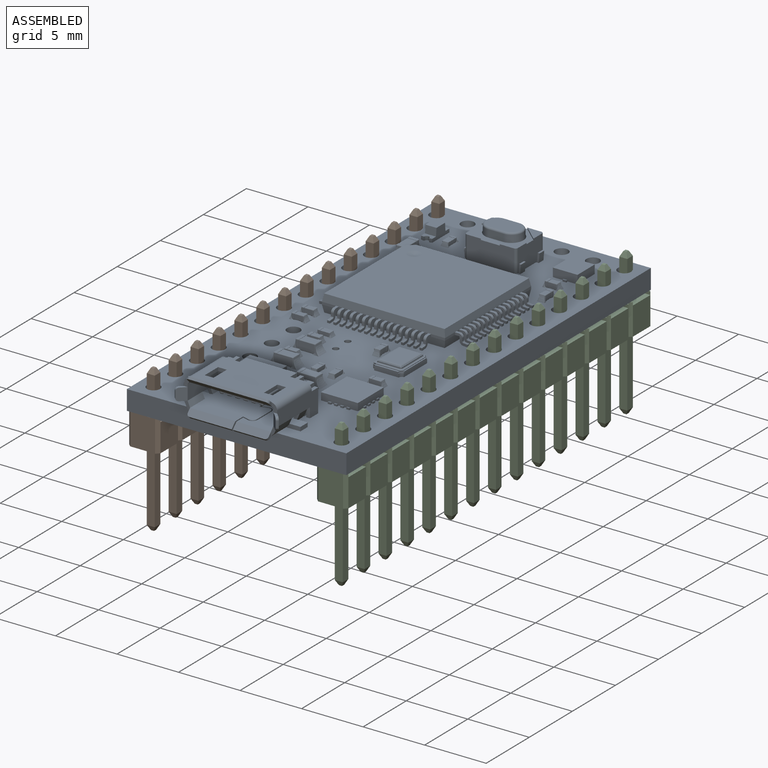
[diagram: assembled view]
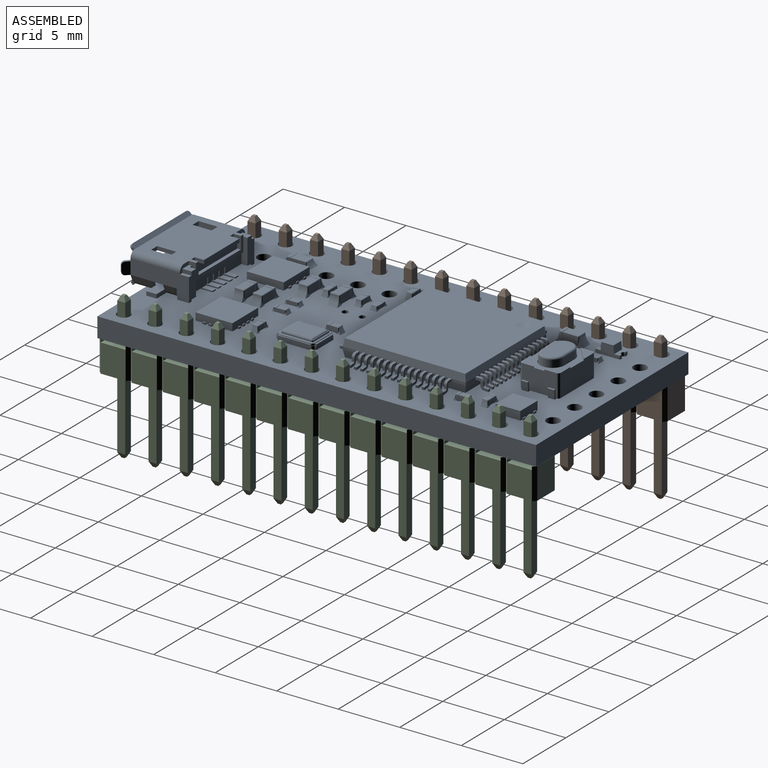
[diagram: assembled view, second angle]
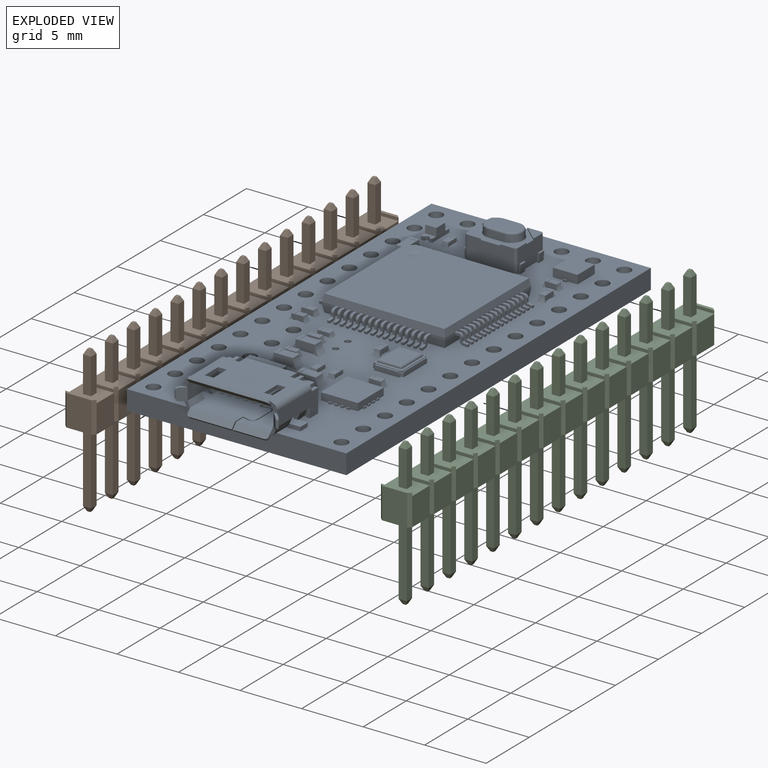
[diagram: exploded view]
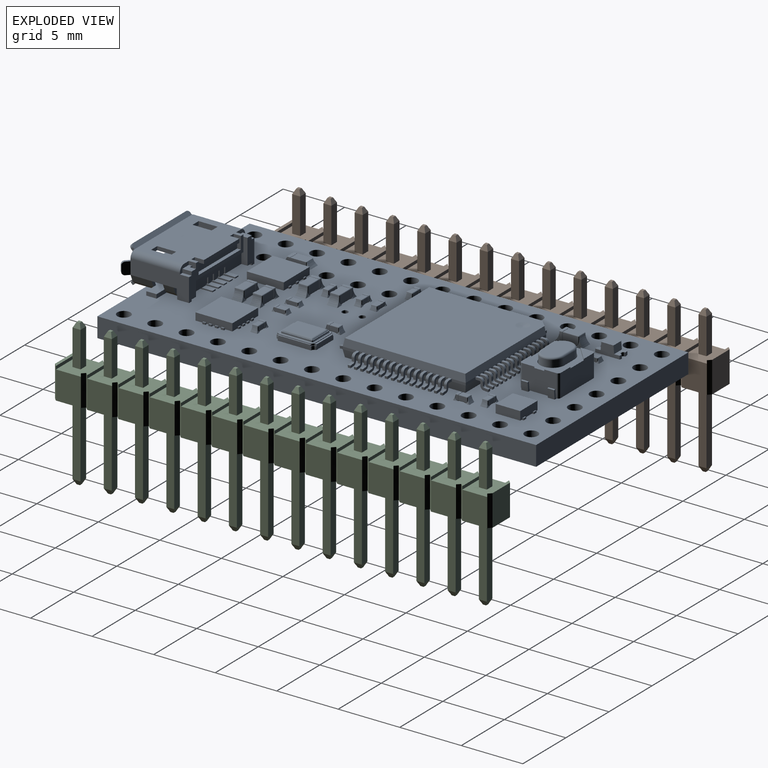
[diagram: exploded view, second angle]
FCSTD DOCUMENT  (FreeCAD 2022.709R26244 +5001 (Git))
Label: Teensy3.2
License: All rights reserved
LicenseURL: http://en.wikipedia.org/wiki/All_rights_reserved
objects: App::Link×80, Part::Feature×28, App::Part×10
note: 28 computed .brp shape members not serialized (recipe doc carries the construction recipe); baked Part::Feature solids carry a one-line shape summary decoded from their .brp

FEATURE [Part::Feature] Solid  label="board"
  Placement = pos=(0.3,3.24e-14,0.1) rot=(0,0,1;0.004152rad)
  TreeRank = 359
  shape: bbox 17.93 x 35.63 x 1.6 mm, 45 faces (baked)
FEATURE [Part::Feature] Solid001  label="Group#12 (1)"
  Placement = pos=(2.53798,1.65653,1.05395) rot=(0,0,1;0rad)
  TreeRank = 360
  shape: bbox 0.3749 x 1.54 x 3.85 mm, 10 faces (baked)
FEATURE [Part::Feature] Solid002  label="micro_usb_plastic (1)"
  Placement = pos=(0.552175,0.369805,0.30395) rot=(0,0,1;0rad)
  TreeRank = 361
  shape: bbox 6.981 x 2.052 x 3.546 mm, 68 faces (baked)
FEATURE [Part::Feature] Solid003  label="micro_usb_shell (1)"
  Placement = pos=(0.252175,0.21783,0.30395) rot=(0,0,1;0rad)
  TreeRank = 362
  shape: bbox 8.939 x 3.087 x 5.372 mm, 124 faces (baked)
FEATURE [App::Link] Link  label="Group#12 (1)001"
  AutoLinkLabel = true
  AutoPlacement = true
  LinkPlacement = pos=(3.19654,1.65653,1.05395) rot=(0,0,1;0rad)
  LinkedObject = -> Solid001
  Placement = pos=(3.19654,1.65653,1.05395) rot=(0,0,1;0rad)
  ShowElement = false
  SyncGroupVisibility = false
  TreeRank = 363
  _LinkVersion = 1
FEATURE [App::Link] Link001  label="Group#12 (1)002"
  AutoLinkLabel = true
  AutoPlacement = true
  LinkPlacement = pos=(3.8551,1.65653,1.05395) rot=(0,0,1;0rad)
  LinkedObject = -> Solid001
  Placement = pos=(3.8551,1.65653,1.05395) rot=(0,0,1;0rad)
  ShowElement = false
  SyncGroupVisibility = false
  TreeRank = 364
  _LinkVersion = 1
FEATURE [App::Link] Link002  label="Group#12 (1)003"
  AutoLinkLabel = true
  AutoPlacement = true
  LinkPlacement = pos=(4.51365,1.65653,1.05395) rot=(0,0,1;0rad)
  LinkedObject = -> Solid001
  Placement = pos=(4.51365,1.65653,1.05395) rot=(0,0,1;0rad)
  ShowElement = false
  SyncGroupVisibility = false
  TreeRank = 365
  _LinkVersion = 1
FEATURE [App::Link] Link003  label="Group#12 (1)004"
  AutoLinkLabel = true
  AutoPlacement = true
  LinkPlacement = pos=(5.17221,1.65653,1.05395) rot=(0,0,1;0rad)
  LinkedObject = -> Solid001
  Placement = pos=(5.17221,1.65653,1.05395) rot=(0,0,1;0rad)
  ShowElement = false
  SyncGroupVisibility = false
  TreeRank = 366
  _LinkVersion = 1
FEATURE [App::Part] Part  label="micro_usb (1)"
  ClaimAllChildren = false
  ExportMode = 1
  Group = -> [Solid001,Solid002,Solid003,Link,Link001,Link002,Link003]
  Origin = -> Origin
  Placement = pos=(5.20898,4.30597,1.48217) rot=(1,0,0;1.5708rad)
  TreeRank = 367
  _ExportChildren = -> [Solid001,Solid002,Solid003,Link,Link001,Link002,Link003]
  _GroupVersion = 1
FEATURE [Part::Feature] Solid004  label="Component21"
  TreeRank = 368
  shape: bbox 3 x 3 x 0.6 mm, 6 faces (baked)
FEATURE [Part::Feature] Compound  label="lead"
  TreeRank = 369
  shape: bbox 3.2 x 3.2 x 0.15 mm, 96 faces, 16 solids (baked)
FEATURE [App::Part] Part001  label="qfp16 v2"
  ClaimAllChildren = false
  ExportMode = 1
  Group = -> [Solid004,Compound]
  Origin = -> Origin001
  Placement = pos=(13.462,7.366,1.6) rot=(0,0,1;0rad)
  TreeRank = 370
  _ExportChildren = -> [Solid004,Compound]
  _GroupVersion = 1
FEATURE [Part::Feature] Solid005  label="package (1)"
  TreeRank = 371
  shape: bbox 10 x 10 x 1.4 mm, 19 faces (baked)
FEATURE [Part::Feature] Solid006  label="lead (3)"
  TreeRank = 372
  shape: bbox 1.19 x 0.22 x 0.85 mm, 14 faces (baked)
FEATURE [App::Link] Link004  label="lead (3)001"
  AutoLinkLabel = true
  AutoPlacement = true
  LinkPlacement = pos=(0,-3.5,0) rot=(0,0,1;0rad)
  LinkedObject = -> Solid006
  Placement = pos=(0,-3.5,0) rot=(0,0,1;0rad)
  ShowElement = false
  SyncGroupVisibility = false
  TreeRank = 373
  _LinkVersion = 1
FEATURE [App::Link] Link005  label="lead (3)002"
  AutoLinkLabel = true
  AutoPlacement = true
  LinkPlacement = pos=(0,-3,0) rot=(0,0,1;0rad)
  LinkedObject = -> Solid006
  Placement = pos=(0,-3,0) rot=(0,0,1;0rad)
  ShowElement = false
  SyncGroupVisibility = false
  TreeRank = 374
  _LinkVersion = 1
FEATURE [App::Link] Link006  label="lead (3)003"
  AutoLinkLabel = true
  AutoPlacement = true
  LinkPlacement = pos=(-1.1e-15,-2.5,0) rot=(0,0,1;0rad)
  LinkedObject = -> Solid006
  Placement = pos=(-1.1e-15,-2.5,0) rot=(0,0,1;0rad)
  ShowElement = false
  SyncGroupVisibility = false
  TreeRank = 375
  _LinkVersion = 1
FEATURE [App::Link] Link007  label="lead (3)004"
  AutoLinkLabel = true
  AutoPlacement = true
  LinkPlacement = pos=(-1.1e-15,-2,0) rot=(0,0,1;0rad)
  LinkedObject = -> Solid006
  Placement = pos=(-1.1e-15,-2,0) rot=(0,0,1;0rad)
  ShowElement = false
  SyncGroupVisibility = false
  TreeRank = 376
  _LinkVersion = 1
FEATURE [App::Link] Link008  label="lead (3)005"
  AutoLinkLabel = true
  AutoPlacement = true
  LinkPlacement = pos=(0,-1.5,0) rot=(0,0,1;0rad)
  LinkedObject = -> Solid006
  Placement = pos=(0,-1.5,0) rot=(0,0,1;0rad)
  ShowElement = false
  SyncGroupVisibility = false
  TreeRank = 377
  _LinkVersion = 1
FEATURE [App::Link] Link009  label="lead (3)006"
  AutoLinkLabel = true
  AutoPlacement = true
  LinkPlacement = pos=(0,-1,0) rot=(0,0,1;0rad)
  LinkedObject = -> Solid006
  Placement = pos=(0,-1,0) rot=(0,0,1;0rad)
  ShowElement = false
  SyncGroupVisibility = false
  TreeRank = 378
  _LinkVersion = 1
FEATURE [App::Link] Link010  label="lead (3)007"
  AutoLinkLabel = true
  AutoPlacement = true
  LinkPlacement = pos=(0,-0.5,0) rot=(0,0,1;0rad)
  LinkedObject = -> Solid006
  Placement = pos=(0,-0.5,0) rot=(0,0,1;0rad)
  ShowElement = false
  SyncGroupVisibility = false
  TreeRank = 379
  _LinkVersion = 1
FEATURE [App::Link] Link011  label="lead (3)008"
  AutoLinkLabel = true
  AutoPlacement = true
  LinkPlacement = pos=(0,0.5,0) rot=(0,0,1;0rad)
  LinkedObject = -> Solid006
  Placement = pos=(0,0.5,0) rot=(0,0,1;0rad)
  ShowElement = false
  SyncGroupVisibility = false
  TreeRank = 380
  _LinkVersion = 1
FEATURE [App::Link] Link012  label="lead (3)009"
  AutoLinkLabel = true
  AutoPlacement = true
  LinkPlacement = pos=(0,1,0) rot=(0,0,1;0rad)
  LinkedObject = -> Solid006
  Placement = pos=(0,1,0) rot=(0,0,1;0rad)
  ShowElement = false
  SyncGroupVisibility = false
  TreeRank = 381
  _LinkVersion = 1
FEATURE [App::Link] Link013  label="lead (3)010"
  AutoLinkLabel = true
  AutoPlacement = true
  LinkPlacement = pos=(-1.1e-15,1.5,0) rot=(0,0,1;0rad)
  LinkedObject = -> Solid006
  Placement = pos=(-1.1e-15,1.5,0) rot=(0,0,1;0rad)
  ShowElement = false
  SyncGroupVisibility = false
  TreeRank = 382
  _LinkVersion = 1
FEATURE [App::Link] Link014  label="lead (3)011"
  AutoLinkLabel = true
  AutoPlacement = true
  LinkPlacement = pos=(0,2,0) rot=(0,0,1;0rad)
  LinkedObject = -> Solid006
  Placement = pos=(0,2,0) rot=(0,0,1;0rad)
  ShowElement = false
  SyncGroupVisibility = false
  TreeRank = 383
  _LinkVersion = 1
FEATURE [App::Link] Link015  label="lead (3)012"
  AutoLinkLabel = true
  AutoPlacement = true
  LinkPlacement = pos=(0,2.5,0) rot=(0,0,1;0rad)
  LinkedObject = -> Solid006
  Placement = pos=(0,2.5,0) rot=(0,0,1;0rad)
  ShowElement = false
  SyncGroupVisibility = false
  TreeRank = 384
  _LinkVersion = 1
FEATURE [App::Link] Link016  label="lead (3)013"
  AutoLinkLabel = true
  AutoPlacement = true
  LinkPlacement = pos=(0,3,0) rot=(0,0,1;0rad)
  LinkedObject = -> Solid006
  Placement = pos=(0,3,0) rot=(0,0,1;0rad)
  ShowElement = false
  SyncGroupVisibility = false
  TreeRank = 385
  _LinkVersion = 1
FEATURE [App::Link] Link017  label="lead (3)014"
  AutoLinkLabel = true
  AutoPlacement = true
  LinkPlacement = pos=(0,3.5,0) rot=(0,0,1;0rad)
  LinkedObject = -> Solid006
  Placement = pos=(0,3.5,0) rot=(0,0,1;0rad)
  ShowElement = false
  SyncGroupVisibility = false
  TreeRank = 386
  _LinkVersion = 1
FEATURE [App::Link] Link018  label="lead (3)015"
  AutoLinkLabel = true
  AutoPlacement = true
  LinkPlacement = pos=(0,4,0) rot=(0,0,1;0rad)
  LinkedObject = -> Solid006
  Placement = pos=(0,4,0) rot=(0,0,1;0rad)
  ShowElement = false
  SyncGroupVisibility = false
  TreeRank = 387
  _LinkVersion = 1
FEATURE [App::Link] Link019  label="lead (3)016"
  AutoLinkLabel = true
  AutoPlacement = true
  LinkPlacement = pos=(0,0,0) rot=(0,0,1;1.5708rad)
  LinkedObject = -> Solid006
  Placement = pos=(0,0,0) rot=(0,0,1;1.5708rad)
  ShowElement = false
  SyncGroupVisibility = false
  TreeRank = 388
  _LinkVersion = 1
FEATURE [App::Link] Link020  label="lead (3)017"
  AutoLinkLabel = true
  AutoPlacement = true
  LinkPlacement = pos=(0.5,0,0) rot=(0,0,1;1.5708rad)
  LinkedObject = -> Solid006
  Placement = pos=(0.5,0,0) rot=(0,0,1;1.5708rad)
  ShowElement = false
  SyncGroupVisibility = false
  TreeRank = 389
  _LinkVersion = 1
FEATURE [App::Link] Link021  label="lead (3)018"
  AutoLinkLabel = true
  AutoPlacement = true
  LinkPlacement = pos=(-0.5,0,0) rot=(0,0,1;1.5708rad)
  LinkedObject = -> Solid006
  Placement = pos=(-0.5,0,0) rot=(0,0,1;1.5708rad)
  ShowElement = false
  SyncGroupVisibility = false
  TreeRank = 390
  _LinkVersion = 1
FEATURE [App::Link] Link022  label="lead (3)019"
  AutoLinkLabel = true
  AutoPlacement = true
  LinkPlacement = pos=(-1,0,0) rot=(0,0,1;1.5708rad)
  LinkedObject = -> Solid006
  Placement = pos=(-1,0,0) rot=(0,0,1;1.5708rad)
  ShowElement = false
  SyncGroupVisibility = false
  TreeRank = 391
  _LinkVersion = 1
FEATURE [App::Link] Link023  label="lead (3)020"
  AutoLinkLabel = true
  AutoPlacement = true
  LinkPlacement = pos=(3.5,4.4e-15,0) rot=(0,0,1;1.5708rad)
  LinkedObject = -> Solid006
  Placement = pos=(3.5,4.4e-15,0) rot=(0,0,1;1.5708rad)
  ShowElement = false
  SyncGroupVisibility = false
  TreeRank = 392
  _LinkVersion = 1
FEATURE [App::Link] Link024  label="lead (3)021"
  AutoLinkLabel = true
  AutoPlacement = true
  LinkPlacement = pos=(3,4.4e-15,0) rot=(0,0,1;1.5708rad)
  LinkedObject = -> Solid006
  Placement = pos=(3,4.4e-15,0) rot=(0,0,1;1.5708rad)
  ShowElement = false
  SyncGroupVisibility = false
  TreeRank = 393
  _LinkVersion = 1
FEATURE [App::Link] Link025  label="lead (3)022"
  AutoLinkLabel = true
  AutoPlacement = true
  LinkPlacement = pos=(2.5,4.4e-15,0) rot=(0,0,1;1.5708rad)
  LinkedObject = -> Solid006
  Placement = pos=(2.5,4.4e-15,0) rot=(0,0,1;1.5708rad)
  ShowElement = false
  SyncGroupVisibility = false
  TreeRank = 394
  _LinkVersion = 1
FEATURE [App::Link] Link026  label="lead (3)023"
  AutoLinkLabel = true
  AutoPlacement = true
  LinkPlacement = pos=(2,4.4e-15,0) rot=(0,0,1;1.5708rad)
  LinkedObject = -> Solid006
  Placement = pos=(2,4.4e-15,0) rot=(0,0,1;1.5708rad)
  ShowElement = false
  SyncGroupVisibility = false
  TreeRank = 395
  _LinkVersion = 1
FEATURE [App::Link] Link027  label="lead (3)024"
  AutoLinkLabel = true
  AutoPlacement = true
  LinkPlacement = pos=(1.5,4.4e-15,0) rot=(0,0,1;1.5708rad)
  LinkedObject = -> Solid006
  Placement = pos=(1.5,4.4e-15,0) rot=(0,0,1;1.5708rad)
  ShowElement = false
  SyncGroupVisibility = false
  TreeRank = 396
  _LinkVersion = 1
FEATURE [App::Link] Link028  label="lead (3)025"
  AutoLinkLabel = true
  AutoPlacement = true
  LinkPlacement = pos=(1,0,0) rot=(0,0,1;1.5708rad)
  LinkedObject = -> Solid006
  Placement = pos=(1,0,0) rot=(0,0,1;1.5708rad)
  ShowElement = false
  SyncGroupVisibility = false
  TreeRank = 397
  _LinkVersion = 1
FEATURE [App::Link] Link029  label="lead (3)026"
  AutoLinkLabel = true
  AutoPlacement = true
  LinkPlacement = pos=(-1.5,0,0) rot=(0,0,1;1.5708rad)
  LinkedObject = -> Solid006
  Placement = pos=(-1.5,0,0) rot=(0,0,1;1.5708rad)
  ShowElement = false
  SyncGroupVisibility = false
  TreeRank = 398
  _LinkVersion = 1
FEATURE [App::Link] Link030  label="lead (3)027"
  AutoLinkLabel = true
  AutoPlacement = true
  LinkPlacement = pos=(-2,0,0) rot=(0,0,1;1.5708rad)
  LinkedObject = -> Solid006
  Placement = pos=(-2,0,0) rot=(0,0,1;1.5708rad)
  ShowElement = false
  SyncGroupVisibility = false
  TreeRank = 399
  _LinkVersion = 1
FEATURE [App::Link] Link031  label="lead (3)028"
  AutoLinkLabel = true
  AutoPlacement = true
  LinkPlacement = pos=(-2.5,0,0) rot=(0,0,1;1.5708rad)
  LinkedObject = -> Solid006
  Placement = pos=(-2.5,0,0) rot=(0,0,1;1.5708rad)
  ShowElement = false
  SyncGroupVisibility = false
  TreeRank = 400
  _LinkVersion = 1
FEATURE [App::Link] Link032  label="lead (3)029"
  AutoLinkLabel = true
  AutoPlacement = true
  LinkPlacement = pos=(-3,0,0) rot=(0,0,1;1.5708rad)
  LinkedObject = -> Solid006
  Placement = pos=(-3,0,0) rot=(0,0,1;1.5708rad)
  ShowElement = false
  SyncGroupVisibility = false
  TreeRank = 401
  _LinkVersion = 1
FEATURE [App::Link] Link033  label="lead (3)030"
  AutoLinkLabel = true
  AutoPlacement = true
  LinkPlacement = pos=(-3.5,0,0) rot=(0,0,1;1.5708rad)
  LinkedObject = -> Solid006
  Placement = pos=(-3.5,0,0) rot=(0,0,1;1.5708rad)
  ShowElement = false
  SyncGroupVisibility = false
  TreeRank = 402
  _LinkVersion = 1
FEATURE [App::Link] Link034  label="lead (3)031"
  AutoLinkLabel = true
  AutoPlacement = true
  LinkPlacement = pos=(-4,0,0) rot=(0,0,1;1.5708rad)
  LinkedObject = -> Solid006
  Placement = pos=(-4,0,0) rot=(0,0,1;1.5708rad)
  ShowElement = false
  SyncGroupVisibility = false
  TreeRank = 403
  _LinkVersion = 1
FEATURE [App::Link] Link035  label="lead (3)032"
  AutoLinkLabel = true
  AutoPlacement = true
  LinkPlacement = pos=(0,0,0) rot=(0,0,1;3.14159rad)
  LinkedObject = -> Solid006
  Placement = pos=(0,0,0) rot=(0,0,1;3.14159rad)
  ShowElement = false
  SyncGroupVisibility = false
  TreeRank = 404
  _LinkVersion = 1
FEATURE [App::Link] Link036  label="lead (3)033"
  AutoLinkLabel = true
  AutoPlacement = true
  LinkPlacement = pos=(0,0.5,0) rot=(0,0,1;3.14159rad)
  LinkedObject = -> Solid006
  Placement = pos=(0,0.5,0) rot=(0,0,1;3.14159rad)
  ShowElement = false
  SyncGroupVisibility = false
  TreeRank = 405
  _LinkVersion = 1
FEATURE [App::Link] Link037  label="lead (3)034"
  AutoLinkLabel = true
  AutoPlacement = true
  LinkPlacement = pos=(0,-0.5,0) rot=(0,0,1;3.14159rad)
  LinkedObject = -> Solid006
  Placement = pos=(0,-0.5,0) rot=(0,0,1;3.14159rad)
  ShowElement = false
  SyncGroupVisibility = false
  TreeRank = 406
  _LinkVersion = 1
FEATURE [App::Link] Link038  label="lead (3)035"
  AutoLinkLabel = true
  AutoPlacement = true
  LinkPlacement = pos=(0,-1,0) rot=(0,0,1;3.14159rad)
  LinkedObject = -> Solid006
  Placement = pos=(0,-1,0) rot=(0,0,1;3.14159rad)
  ShowElement = false
  SyncGroupVisibility = false
  TreeRank = 407
  _LinkVersion = 1
FEATURE [App::Link] Link039  label="lead (3)036"
  AutoLinkLabel = true
  AutoPlacement = true
  LinkPlacement = pos=(0,3.5,0) rot=(0,0,1;3.14159rad)
  LinkedObject = -> Solid006
  Placement = pos=(0,3.5,0) rot=(0,0,1;3.14159rad)
  ShowElement = false
  SyncGroupVisibility = false
  TreeRank = 408
  _LinkVersion = 1
FEATURE [App::Link] Link040  label="lead (3)037"
  AutoLinkLabel = true
  AutoPlacement = true
  LinkPlacement = pos=(0,3,0) rot=(0,0,1;3.14159rad)
  LinkedObject = -> Solid006
  Placement = pos=(0,3,0) rot=(0,0,1;3.14159rad)
  ShowElement = false
  SyncGroupVisibility = false
  TreeRank = 409
  _LinkVersion = 1
FEATURE [App::Link] Link041  label="lead (3)038"
  AutoLinkLabel = true
  AutoPlacement = true
  LinkPlacement = pos=(0,2.5,0) rot=(0,0,1;3.14159rad)
  LinkedObject = -> Solid006
  Placement = pos=(0,2.5,0) rot=(0,0,1;3.14159rad)
  ShowElement = false
  SyncGroupVisibility = false
  TreeRank = 410
  _LinkVersion = 1
FEATURE [App::Link] Link042  label="lead (3)039"
  AutoLinkLabel = true
  AutoPlacement = true
  LinkPlacement = pos=(0,2,0) rot=(0,0,1;3.14159rad)
  LinkedObject = -> Solid006
  Placement = pos=(0,2,0) rot=(0,0,1;3.14159rad)
  ShowElement = false
  SyncGroupVisibility = false
  TreeRank = 411
  _LinkVersion = 1
FEATURE [App::Link] Link043  label="lead (3)040"
  AutoLinkLabel = true
  AutoPlacement = true
  LinkPlacement = pos=(0,1.5,0) rot=(0,0,1;3.14159rad)
  LinkedObject = -> Solid006
  Placement = pos=(0,1.5,0) rot=(0,0,1;3.14159rad)
  ShowElement = false
  SyncGroupVisibility = false
  TreeRank = 412
  _LinkVersion = 1
FEATURE [App::Link] Link044  label="lead (3)041"
  AutoLinkLabel = true
  AutoPlacement = true
  LinkPlacement = pos=(0,1,0) rot=(0,0,1;3.14159rad)
  LinkedObject = -> Solid006
  Placement = pos=(0,1,0) rot=(0,0,1;3.14159rad)
  ShowElement = false
  SyncGroupVisibility = false
  TreeRank = 413
  _LinkVersion = 1
FEATURE [App::Link] Link045  label="lead (3)042"
  AutoLinkLabel = true
  AutoPlacement = true
  LinkPlacement = pos=(-1.1e-15,-1.5,0) rot=(0,0,1;3.14159rad)
  LinkedObject = -> Solid006
  Placement = pos=(-1.1e-15,-1.5,0) rot=(0,0,1;3.14159rad)
  ShowElement = false
  SyncGroupVisibility = false
  TreeRank = 414
  _LinkVersion = 1
FEATURE [App::Link] Link046  label="lead (3)043"
  AutoLinkLabel = true
  AutoPlacement = true
  LinkPlacement = pos=(-1.1e-15,-2,0) rot=(0,0,1;3.14159rad)
  LinkedObject = -> Solid006
  Placement = pos=(-1.1e-15,-2,0) rot=(0,0,1;3.14159rad)
  ShowElement = false
  SyncGroupVisibility = false
  TreeRank = 415
  _LinkVersion = 1
FEATURE [App::Link] Link047  label="lead (3)044"
  AutoLinkLabel = true
  AutoPlacement = true
  LinkPlacement = pos=(-1.1e-15,-2.5,0) rot=(0,0,1;3.14159rad)
  LinkedObject = -> Solid006
  Placement = pos=(-1.1e-15,-2.5,0) rot=(0,0,1;3.14159rad)
  ShowElement = false
  SyncGroupVisibility = false
  TreeRank = 416
  _LinkVersion = 1
FEATURE [App::Link] Link048  label="lead (3)045"
  AutoLinkLabel = true
  AutoPlacement = true
  LinkPlacement = pos=(0,-3,0) rot=(0,0,1;3.14159rad)
  LinkedObject = -> Solid006
  Placement = pos=(0,-3,0) rot=(0,0,1;3.14159rad)
  ShowElement = false
  SyncGroupVisibility = false
  TreeRank = 417
  _LinkVersion = 1
FEATURE [App::Link] Link049  label="lead (3)046"
  AutoLinkLabel = true
  AutoPlacement = true
  LinkPlacement = pos=(0,-3.5,0) rot=(0,0,1;3.14159rad)
  LinkedObject = -> Solid006
  Placement = pos=(0,-3.5,0) rot=(0,0,1;3.14159rad)
  ShowElement = false
  SyncGroupVisibility = false
  TreeRank = 418
  _LinkVersion = 1
FEATURE [App::Link] Link050  label="lead (3)047"
  AutoLinkLabel = true
  AutoPlacement = true
  LinkPlacement = pos=(0,-4,0) rot=(0,0,1;3.14159rad)
  LinkedObject = -> Solid006
  Placement = pos=(0,-4,0) rot=(0,0,1;3.14159rad)
  ShowElement = false
  SyncGroupVisibility = false
  TreeRank = 419
  _LinkVersion = 1
FEATURE [App::Link] Link051  label="lead (3)048"
  AutoLinkLabel = true
  AutoPlacement = true
  LinkPlacement = pos=(0,0,0) rot=(0,0,-1;1.5708rad)
  LinkedObject = -> Solid006
  Placement = pos=(0,0,0) rot=(0,0,-1;1.5708rad)
  ShowElement = false
  SyncGroupVisibility = false
  TreeRank = 420
  _LinkVersion = 1
FEATURE [App::Link] Link052  label="lead (3)049"
  AutoLinkLabel = true
  AutoPlacement = true
  LinkPlacement = pos=(-0.5,0,0) rot=(0,0,-1;1.5708rad)
  LinkedObject = -> Solid006
  Placement = pos=(-0.5,0,0) rot=(0,0,-1;1.5708rad)
  ShowElement = false
  SyncGroupVisibility = false
  TreeRank = 421
  _LinkVersion = 1
FEATURE [App::Link] Link053  label="lead (3)050"
  AutoLinkLabel = true
  AutoPlacement = true
  LinkPlacement = pos=(0.5,0,0) rot=(0,0,-1;1.5708rad)
  LinkedObject = -> Solid006
  Placement = pos=(0.5,0,0) rot=(0,0,-1;1.5708rad)
  ShowElement = false
  SyncGroupVisibility = false
  TreeRank = 422
  _LinkVersion = 1
FEATURE [App::Link] Link054  label="lead (3)051"
  AutoLinkLabel = true
  AutoPlacement = true
  LinkPlacement = pos=(1,0,0) rot=(0,0,-1;1.5708rad)
  LinkedObject = -> Solid006
  Placement = pos=(1,0,0) rot=(0,0,-1;1.5708rad)
  ShowElement = false
  SyncGroupVisibility = false
  TreeRank = 423
  _LinkVersion = 1
FEATURE [App::Link] Link055  label="lead (3)052"
  AutoLinkLabel = true
  AutoPlacement = true
  LinkPlacement = pos=(-3.5,0,0) rot=(0,0,-1;1.5708rad)
  LinkedObject = -> Solid006
  Placement = pos=(-3.5,0,0) rot=(0,0,-1;1.5708rad)
  ShowElement = false
  SyncGroupVisibility = false
  TreeRank = 424
  _LinkVersion = 1
FEATURE [App::Link] Link056  label="lead (3)053"
  AutoLinkLabel = true
  AutoPlacement = true
  LinkPlacement = pos=(-3,0,0) rot=(0,0,-1;1.5708rad)
  LinkedObject = -> Solid006
  Placement = pos=(-3,0,0) rot=(0,0,-1;1.5708rad)
  ShowElement = false
  SyncGroupVisibility = false
  TreeRank = 425
  _LinkVersion = 1
FEATURE [App::Link] Link057  label="lead (3)054"
  AutoLinkLabel = true
  AutoPlacement = true
  LinkPlacement = pos=(-2.5,0,0) rot=(0,0,-1;1.5708rad)
  LinkedObject = -> Solid006
  Placement = pos=(-2.5,0,0) rot=(0,0,-1;1.5708rad)
  ShowElement = false
  SyncGroupVisibility = false
  TreeRank = 426
  _LinkVersion = 1
FEATURE [App::Link] Link058  label="lead (3)055"
  AutoLinkLabel = true
  AutoPlacement = true
  LinkPlacement = pos=(-2,0,0) rot=(0,0,-1;1.5708rad)
  LinkedObject = -> Solid006
  Placement = pos=(-2,0,0) rot=(0,0,-1;1.5708rad)
  ShowElement = false
  SyncGroupVisibility = false
  TreeRank = 427
  _LinkVersion = 1
FEATURE [App::Link] Link059  label="lead (3)056"
  AutoLinkLabel = true
  AutoPlacement = true
  LinkPlacement = pos=(-1.5,0,0) rot=(0,0,-1;1.5708rad)
  LinkedObject = -> Solid006
  Placement = pos=(-1.5,0,0) rot=(0,0,-1;1.5708rad)
  ShowElement = false
  SyncGroupVisibility = false
  TreeRank = 428
  _LinkVersion = 1
FEATURE [App::Link] Link060  label="lead (3)057"
  AutoLinkLabel = true
  AutoPlacement = true
  LinkPlacement = pos=(-1,0,0) rot=(0,0,-1;1.5708rad)
  LinkedObject = -> Solid006
  Placement = pos=(-1,0,0) rot=(0,0,-1;1.5708rad)
  ShowElement = false
  SyncGroupVisibility = false
  TreeRank = 429
  _LinkVersion = 1
FEATURE [App::Link] Link061  label="lead (3)058"
  AutoLinkLabel = true
  AutoPlacement = true
  LinkPlacement = pos=(1.5,4.4e-15,0) rot=(0,0,-1;1.5708rad)
  LinkedObject = -> Solid006
  Placement = pos=(1.5,4.4e-15,0) rot=(0,0,-1;1.5708rad)
  ShowElement = false
  SyncGroupVisibility = false
  TreeRank = 430
  _LinkVersion = 1
FEATURE [App::Link] Link062  label="lead (3)059"
  AutoLinkLabel = true
  AutoPlacement = true
  LinkPlacement = pos=(2,4.4e-15,0) rot=(0,0,-1;1.5708rad)
  LinkedObject = -> Solid006
  Placement = pos=(2,4.4e-15,0) rot=(0,0,-1;1.5708rad)
  ShowElement = false
  SyncGroupVisibility = false
  TreeRank = 431
  _LinkVersion = 1
FEATURE [App::Link] Link063  label="lead (3)060"
  AutoLinkLabel = true
  AutoPlacement = true
  LinkPlacement = pos=(2.5,4.4e-15,0) rot=(0,0,-1;1.5708rad)
  LinkedObject = -> Solid006
  Placement = pos=(2.5,4.4e-15,0) rot=(0,0,-1;1.5708rad)
  ShowElement = false
  SyncGroupVisibility = false
  TreeRank = 432
  _LinkVersion = 1
FEATURE [App::Link] Link064  label="lead (3)061"
  AutoLinkLabel = true
  AutoPlacement = true
  LinkPlacement = pos=(3,4.4e-15,0) rot=(0,0,-1;1.5708rad)
  LinkedObject = -> Solid006
  Placement = pos=(3,4.4e-15,0) rot=(0,0,-1;1.5708rad)
  ShowElement = false
  SyncGroupVisibility = false
  TreeRank = 433
  _LinkVersion = 1
FEATURE [App::Link] Link065  label="lead (3)062"
  AutoLinkLabel = true
  AutoPlacement = true
  LinkPlacement = pos=(3.5,4.4e-15,0) rot=(0,0,-1;1.5708rad)
  LinkedObject = -> Solid006
  Placement = pos=(3.5,4.4e-15,0) rot=(0,0,-1;1.5708rad)
  ShowElement = false
  SyncGroupVisibility = false
  TreeRank = 434
  _LinkVersion = 1
FEATURE [App::Link] Link066  label="lead (3)063"
  AutoLinkLabel = true
  AutoPlacement = true
  LinkPlacement = pos=(4,4.4e-15,0) rot=(0,0,-1;1.5708rad)
  LinkedObject = -> Solid006
  Placement = pos=(4,4.4e-15,0) rot=(0,0,-1;1.5708rad)
  ShowElement = false
  SyncGroupVisibility = false
  TreeRank = 435
  _LinkVersion = 1
FEATURE [App::Part] Part002  label="tqfp64 v1"
  ClaimAllChildren = false
  ExportMode = 1
  Group = -> [Solid005,Solid006,Link004,Link005,Link006,Link007,Link008,Link009,Link010,Link011,Link012,Link013,Link014,Link015,Link016,Link017,Link018,Link019,Link020,Link021,Link022,Link023,Link024,Link025,Link026,Link027,Link028,Link029,Link030,Link031,Link032,Link033,Link034,Link035,Link036,Link037,Link038,Link039,Link040,Link041,Link042,Link043,Link044,Link045,Link046,Link047,Link048,Link049,Link050,+16 more]
  Origin = -> Origin002
  Placement = pos=(9.0932,22.225,1.6) rot=(0,0,1;3.14159rad)
  TreeRank = 436
  _ExportChildren = -> [Solid005,Solid006,Link004,Link005,Link006,Link007,Link008,Link009,Link010,Link011,Link012,Link013,Link014,Link015,Link016,Link017,Link018,Link019,Link020,Link021,Link022,Link023,Link024,Link025,Link026,Link027,Link028,Link029,Link030,Link031,Link032,Link033,Link034,Link035,Link036,Link037,Link038,Link039,Link040,Link041,Link042,Link043,Link044,Link045,Link046,Link047,Link048,Link049,Link050,+16 more]
  _GroupVersion = 1
FEATURE [Part::Feature] Solid007  label="package"
  Placement = pos=(3.3e-15,5.6e-15,1.7e-15) rot=(0,0,1;0rad)
  TreeRank = 437
  shape: bbox 3 x 3 x 0.6 mm, 6 faces (baked)
FEATURE [Part::Feature] Compound001  label="lead (1)"
  Placement = pos=(1.1e-15,2.2e-15,1.1e-15) rot=(0,0,1;0rad)
  TreeRank = 438
  shape: bbox 3.2 x 1.95 x 0.15 mm, 36 faces, 6 solids (baked)
FEATURE [App::Part] Part003  label="qfp16 v2 (1)"
  ClaimAllChildren = false
  ExportMode = 1
  Group = -> [Solid007,Compound001]
  Origin = -> Origin003
  Placement = pos=(6.223,6.477,1.6) rot=(0,0,-1;1.5708rad)
  TreeRank = 439
  _ExportChildren = -> [Solid007,Compound001]
  _GroupVersion = 1
FEATURE [Part::Feature] Compound002  label="cap0402 v2"
  Placement = pos=(13.5636,10.0838,1.6) rot=(0,0,1;0rad)
  TreeRank = 440
  shape: bbox 1.367 x 0.6001 x 0.5 mm, 98 faces, 3 solids (baked)
FEATURE [Part::Feature] Solid008  label="Component28"
  Placement = pos=(-4.4e-15,-4.4e-15,0) rot=(0,0,1;0rad)
  TreeRank = 441
  shape: bbox 2 x 2 x 0.7 mm, 6 faces (baked)
FEATURE [Part::Feature] Compound003  label="lead (2)"
  Placement = pos=(-1.33e-14,1.11e-14,0) rot=(0,0,1;0rad)
  TreeRank = 442
  shape: bbox 2.2 x 1.5 x 0.15 mm, 18 faces, 3 solids (baked)
FEATURE [App::Part] Part004  label="wson-6 v3"
  ClaimAllChildren = false
  ExportMode = 1
  Group = -> [Solid008,Compound003]
  Origin = -> Origin004
  Placement = pos=(14.478,31.623,1.6) rot=(0,0,1;1.5708rad)
  TreeRank = 443
  _ExportChildren = -> [Solid008,Compound003]
  _GroupVersion = 1
FEATURE [Part::Feature] Compound004  label="diode_0402 v1"
  Placement = pos=(6.223,14.605,1.6) rot=(0,0,1;0rad)
  TreeRank = 444
  shape: bbox 1.268 x 0.6007 x 0.3506 mm, 56 faces, 3 solids (baked)
FEATURE [Part::Feature] Compound005  label="cap0603_03 v3"
  Placement = pos=(6.7056,9.398,1.6) rot=(0,0,1;0rad)
  TreeRank = 445
  shape: bbox 2.302 x 0.9018 x 0.8018 mm, 98 faces, 3 solids (baked)
FEATURE [Part::Feature] Compound006  label="cap0402 v2 (1)"
  Placement = pos=(6.2484,13.3858,1.6) rot=(0,0,1;0rad)
  TreeRank = 446
  shape: bbox 1.367 x 0.6001 x 0.5 mm, 98 faces, 3 solids (baked)
FEATURE [App::Link] Link067  label="cap0402 v2 (1)001"
  AutoLinkLabel = true
  AutoPlacement = true
  LinkPlacement = pos=(6.2484,10.6934,1.6) rot=(0,0,1;0rad)
  LinkedObject = -> Compound006
  Placement = pos=(6.2484,10.6934,1.6) rot=(0,0,1;0rad)
  ShowElement = false
  SyncGroupVisibility = false
  TreeRank = 447
  _LinkVersion = 1
FEATURE [App::Link] Link068  label="diode_0402 v002"
  AutoLinkLabel = true
  AutoPlacement = true
  LinkPlacement = pos=(9.03055,9.72734,1.6) rot=(0,0,1;1.5708rad)
  LinkedObject = -> Compound004
  Placement = pos=(9.03055,9.72734,1.6) rot=(0,0,1;1.5708rad)
  ShowElement = false
  SyncGroupVisibility = false
  TreeRank = 448
  _LinkVersion = 1
FEATURE [App::Link] Link069  label="diode_0402 v003"
  AutoLinkLabel = true
  AutoPlacement = true
  LinkPlacement = pos=(10.4783,9.72734,1.6) rot=(0,0,1;1.5708rad)
  LinkedObject = -> Compound004
  Placement = pos=(10.4783,9.72734,1.6) rot=(0,0,1;1.5708rad)
  ShowElement = false
  SyncGroupVisibility = false
  TreeRank = 449
  _LinkVersion = 1
FEATURE [Part::Feature] Compound007  label="smt_led_0805 v2"
  Placement = pos=(3.302,31.496,1.6) rot=(0,0,1;0rad)
  TreeRank = 450
  shape: bbox 0.9 x 2 x 0.92 mm, 83 faces, 7 solids (baked)
FEATURE [Part::Feature] Compound008  label="Component38"
  TreeRank = 451
  shape: bbox 3.2 x 2.5 x 0.3 mm, 44 faces, 4 solids (baked)
FEATURE [Part::Feature] Solid009  label="Component39"
  TreeRank = 452
  shape: bbox 3.2 x 2.5 x 0.4 mm, 30 faces (baked)
FEATURE [Part::Feature] Solid010  label="Component40"
  TreeRank = 453
  shape: bbox 2.9 x 2.3 x 0.2 mm, 35 faces (baked)
FEATURE [Part::Feature] Solid011  label="Component41"
  TreeRank = 454
  shape: bbox 2.5 x 1.9 x 0.2 mm, 35 faces (baked)
FEATURE [App::Part] Part005  label="crystal_dfn4 v8"
  ClaimAllChildren = false
  ExportMode = 1
  Group = -> [Compound008,Solid009,Solid010,Solid011]
  Origin = -> Origin005
  Placement = pos=(13.081,13.462,1.6) rot=(0,0,1;1.5708rad)
  TreeRank = 455
  _ExportChildren = -> [Compound008,Solid009,Solid010,Solid011]
  _GroupVersion = 1
FEATURE [App::Link] Link070  label="cap0402 v003"
  AutoLinkLabel = true
  AutoPlacement = true
  LinkPlacement = pos=(10.9179,14.3551,1.6) rot=(0,0,1;1.5708rad)
  LinkedObject = -> Compound002
  Placement = pos=(10.9179,14.3551,1.6) rot=(0,0,1;1.5708rad)
  ShowElement = false
  SyncGroupVisibility = false
  TreeRank = 456
  _LinkVersion = 1
FEATURE [App::Link] Link071  label="cap0402 v004"
  AutoLinkLabel = true
  AutoPlacement = true
  LinkPlacement = pos=(3.4544,15.5448,1.6) rot=(0,0,1;0rad)
  LinkedObject = -> Compound002
  Placement = pos=(3.4544,15.5448,1.6) rot=(0,0,1;0rad)
  ShowElement = false
  SyncGroupVisibility = false
  TreeRank = 457
  _LinkVersion = 1
FEATURE [App::Link] Link072  label="cap0402 v005"
  AutoLinkLabel = true
  AutoPlacement = true
  LinkPlacement = pos=(3.4544,16.6878,1.6) rot=(0,0,1;0rad)
  LinkedObject = -> Compound002
  Placement = pos=(3.4544,16.6878,1.6) rot=(0,0,1;0rad)
  ShowElement = false
  SyncGroupVisibility = false
  TreeRank = 458
  _LinkVersion = 1
FEATURE [App::Link] Link073  label="cap0603_03 v004"
  AutoLinkLabel = true
  AutoPlacement = true
  LinkPlacement = pos=(6.7056,11.9634,1.6) rot=(0,0,1;0rad)
  LinkedObject = -> Compound005
  Placement = pos=(6.7056,11.9634,1.6) rot=(0,0,1;0rad)
  ShowElement = false
  SyncGroupVisibility = false
  TreeRank = 459
  _LinkVersion = 1
FEATURE [App::Link] Link074  label="cap0603_03 v005"
  AutoLinkLabel = true
  AutoPlacement = true
  LinkPlacement = pos=(9.7028,6.2992,1.6) rot=(0,0,1;0rad)
  LinkedObject = -> Compound005
  Placement = pos=(9.7028,6.2992,1.6) rot=(0,0,1;0rad)
  ShowElement = false
  SyncGroupVisibility = false
  TreeRank = 460
  _LinkVersion = 1
FEATURE [App::Link] Link075  label="cap0603_03 v006"
  AutoLinkLabel = true
  AutoPlacement = true
  LinkPlacement = pos=(9.7028,7.7724,1.6) rot=(0,0,1;0rad)
  LinkedObject = -> Compound005
  Placement = pos=(9.7028,7.7724,1.6) rot=(0,0,1;0rad)
  ShowElement = false
  SyncGroupVisibility = false
  TreeRank = 461
  _LinkVersion = 1
FEATURE [App::Link] Link076  label="cap0603_03 v007"
  AutoLinkLabel = true
  AutoPlacement = true
  LinkPlacement = pos=(3.27673,28.3209,1.6) rot=(0,0,1;1.5708rad)
  LinkedObject = -> Compound005
  Placement = pos=(3.27673,28.3209,1.6) rot=(0,0,1;1.5708rad)
  ShowElement = false
  SyncGroupVisibility = false
  TreeRank = 462
  _LinkVersion = 1
FEATURE [App::Link] Link077  label="diode_0402 v004"
  AutoLinkLabel = true
  AutoPlacement = true
  LinkPlacement = pos=(4.75065,31.0887,1.6) rot=(0,0,1;1.5708rad)
  LinkedObject = -> Compound004
  Placement = pos=(4.75065,31.0887,1.6) rot=(0,0,1;1.5708rad)
  ShowElement = false
  SyncGroupVisibility = false
  TreeRank = 463
  _LinkVersion = 1
FEATURE [App::Link] Link078  label="cap0402 v006"
  AutoLinkLabel = true
  AutoPlacement = true
  LinkPlacement = pos=(14.3764,29.337,1.6) rot=(0,0,1;0rad)
  LinkedObject = -> Compound002
  Placement = pos=(14.3764,29.337,1.6) rot=(0,0,1;0rad)
  ShowElement = false
  SyncGroupVisibility = false
  TreeRank = 464
  _LinkVersion = 1
FEATURE [App::Link] Link079  label="cap0402 v007"
  AutoLinkLabel = true
  AutoPlacement = true
  LinkPlacement = pos=(15.0073,27.6901,1.6) rot=(0,0,1;1.5708rad)
  LinkedObject = -> Compound002
  Placement = pos=(15.0073,27.6901,1.6) rot=(0,0,1;1.5708rad)
  ShowElement = false
  SyncGroupVisibility = false
  TreeRank = 465
  _LinkVersion = 1
FEATURE [Part::Feature] Solid012  label="Component43"
  TreeRank = 466
  shape: bbox 4.2 x 3.2 x 1.85 mm, 38 faces (baked)
FEATURE [Part::Feature] Solid013  label="Component44"
  TreeRank = 467
  shape: bbox 4.2 x 3.2 x 0.15 mm, 14 faces (baked)
FEATURE [Part::Feature] Solid014  label="Component45"
  TreeRank = 468
  shape: bbox 3.205 x 2.006 x 1.5 mm, 10 faces (baked)
FEATURE [Part::Feature] Compound009  label="Component46"
  TreeRank = 469
  shape: bbox 4.625 x 2.7 x 0.728 mm, 32 faces, 4 solids (baked)
FEATURE [App::Part] Part006  label="smt_tactile_button_2 v2"
  ClaimAllChildren = false
  ExportMode = 1
  Group = -> [Solid012,Solid013,Solid014,Compound009]
  Origin = -> Origin006
  Placement = pos=(9.1186,31.1912,1.6) rot=(0,0,1;0rad)
  TreeRank = 470
  _ExportChildren = -> [Solid012,Solid013,Solid014,Compound009]
  _GroupVersion = 1
FEATURE [Part::Feature] Compound010  label="resistor_0603 v3"
  Placement = pos=(3.49291,6.34044,1.6) rot=(0,0,1;1.5708rad)
  TreeRank = 471
  shape: bbox 0.9017 x 2.302 x 0.4516 mm, 60 faces, 3 solids (baked)
FEATURE [App::Part] Part007  label="Teensy_3_1 v13"
  ClaimAllChildren = false
  ExportMode = 1
  Group = -> [Solid,Part,Part001,Part002,Part003,Compound002,Part004,Compound004,Compound005,Compound006,Link067,Link068,Link069,Compound007,Part005,Link070,Link071,Link072,Link073,Link074,Link075,Link076,Link077,Link078,Link079,Part006,Compound010]
  Origin = -> Origin007
  TreeRank = 472
  _ExportChildren = -> [Solid,Part,Part001,Part002,Part003,Compound002,Part004,Compound004,Compound005,Compound006,Link067,Link068,Link069,Compound007,Part005,Link070,Link071,Link072,Link073,Link074,Link075,Link076,Link077,Link078,Link079,Part006,Compound010]
  _GroupVersion = 1
FEATURE [Part::Feature] Solid015  label="14-Pin Header - Male - 2.54mm"
  Placement = pos=(0,-1e-16,-1e-16) rot=(1,0,0;1.5708rad)
  TreeRank = 476
  shape: bbox 35.56 x 2.54 x 11.94 mm, 396 faces (baked)
FEATURE [App::Part] Part008  label="ZL201-40_P2-54_L101_W2-54_H8-9"
  ClaimAllChildren = false
  ExportMode = 1
  Group = -> [Solid015]
  Origin = -> Origin008
  Placement = pos=(1.575,1.275,-2e-16) rot=(0.707107,0.707107,0;3.14159rad)
  TreeRank = 478
  _ExportChildren = -> [Solid015]
  _GroupVersion = 1
FEATURE [Part::Feature] Solid016  label="14-Pin Header - Male - 2.54mm001"
  Placement = pos=(0,-1e-16,-1e-16) rot=(1,0,0;1.5708rad)
  TreeRank = 476
  shape: bbox 35.56 x 2.54 x 11.94 mm, 396 faces (baked)
FEATURE [App::Part] Part009  label="ZL201-40_P2-54_L101_W2-54_H8-010"
  ClaimAllChildren = false
  ExportMode = 1
  Group = -> [Solid016]
  Origin = -> Origin009
  Placement = pos=(16.8,1.35,1.1e-15) rot=(0.707107,0.707107,0;3.14159rad)
  TreeRank = 480
  _ExportChildren = -> [Solid016]
  _GroupVersion = 1
